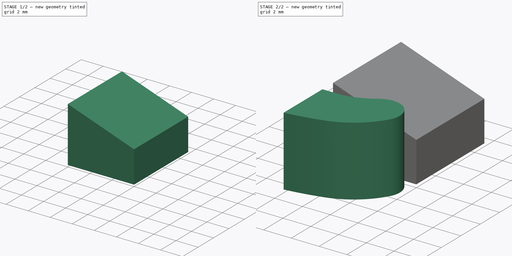
[diagram: build sequence overview — one tinted view per stage of 2, left to right]
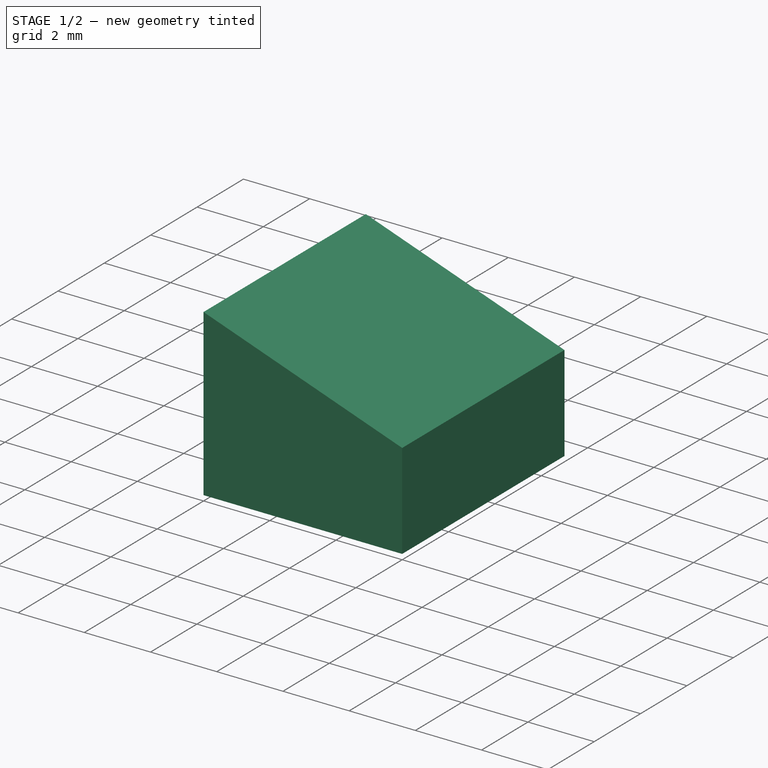
[diagram: stage 1 of 2 — iso view after this stage's code; geometry added in this stage tinted green]
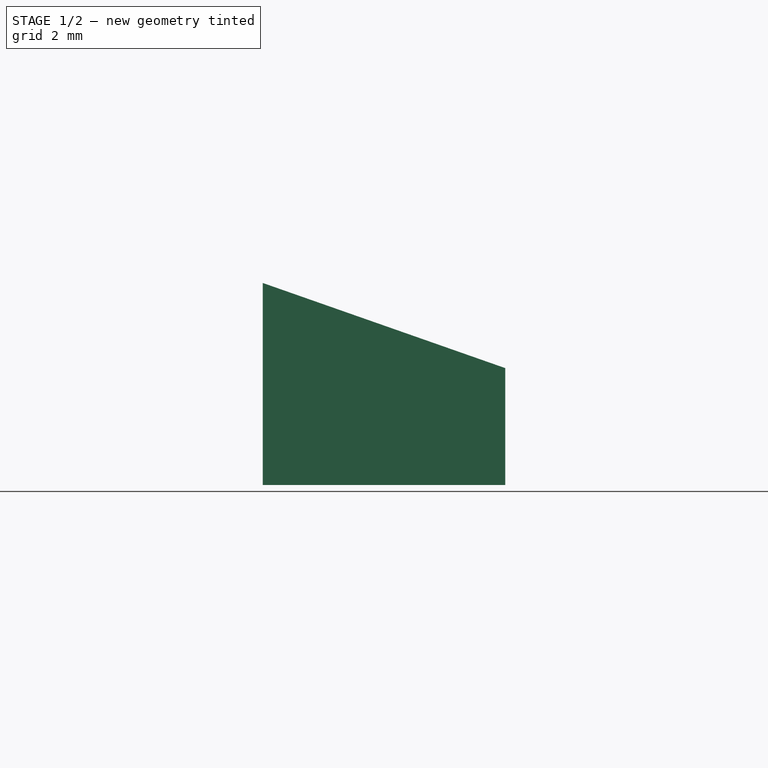
[diagram: stage 1 of 2 — front view after this stage's code; geometry added in this stage tinted green]
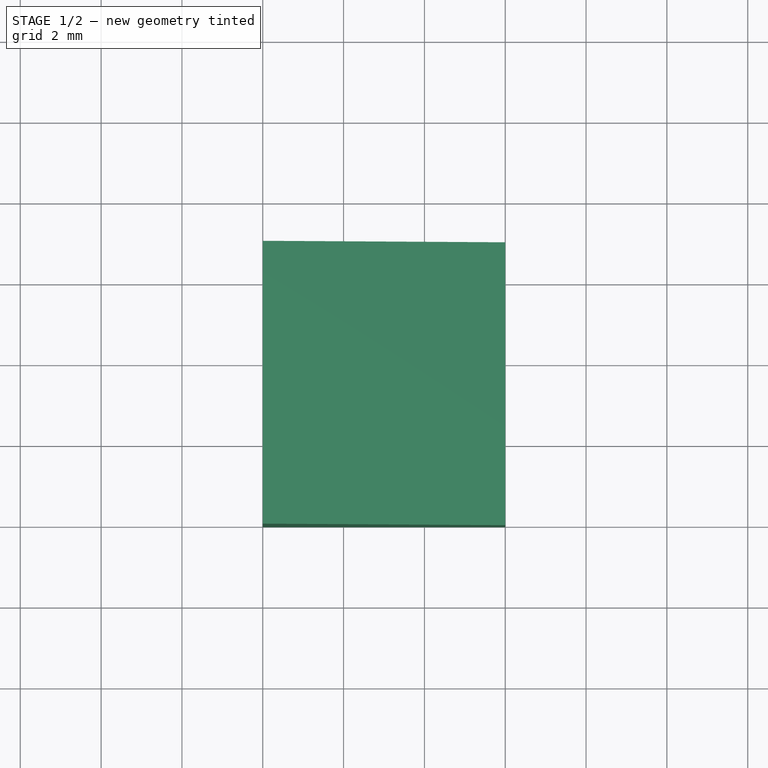
[diagram: stage 1 of 2 — top view after this stage's code; geometry added in this stage tinted green]
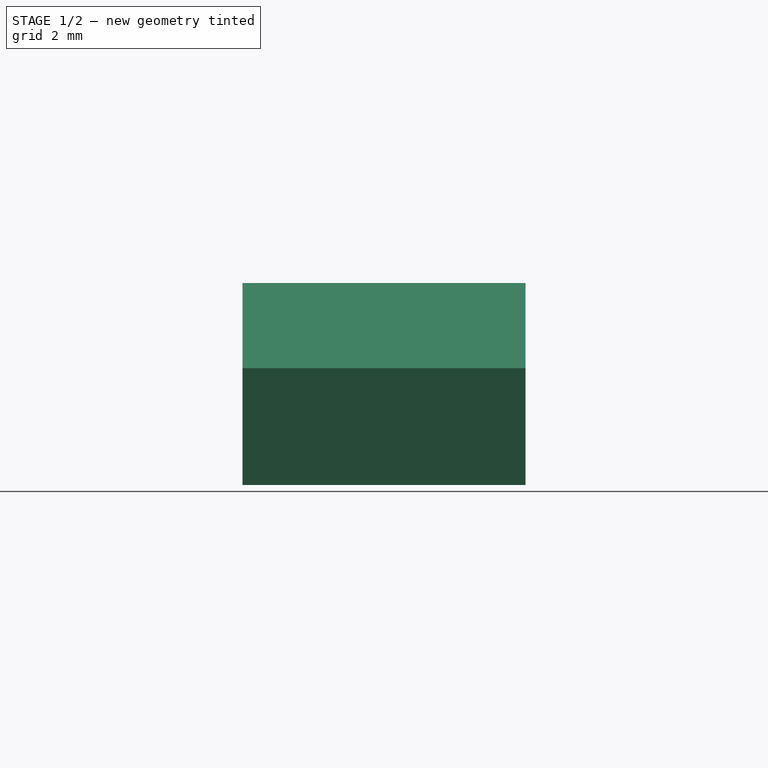
[diagram: stage 1 of 2 — right view after this stage's code; geometry added in this stage tinted green]
FCSTD DOCUMENT  (FreeCAD 0.15R4671 (Git))
Label: Lug2
License: All rights reserved
LicenseURL: http://en.wikipedia.org/wiki/All_rights_reserved
objects: Sketcher::SketchObject×2, Part::Extrusion×2, Part::Common×2
note: 6 computed .brp shape members not serialized (recipe doc carries the construction recipe); baked Part::Feature solids carry a one-line shape summary decoded from their .brp

FEATURE [Sketcher::SketchObject] Sketch001
  Placement = pos=(0,0,0) rot=(1,0,0;1.5708rad)
  sketch-geometry (4):
    g0: LineSegment StartX=0 StartY=5 StartZ=0 EndX=6 EndY=2.89346 EndZ=0
    g1: LineSegment StartX=6 StartY=0 StartZ=0 EndX=0 EndY=0 EndZ=0
    g2: LineSegment StartX=0 StartY=0 StartZ=0 EndX=0 EndY=5 EndZ=0
    g3: LineSegment StartX=6 StartY=2.89346 StartZ=0 EndX=6 EndY=0 EndZ=0
  constraints (11):
    c: PointOnObject(g0,g-2)
    c: Coincident(g1,g-1)
    c: Horizontal(g1)
    c: Coincident(g1,g2)
    c: Coincident(g2,g0)
    c: DistanceX(g0,g0) = -6
    c: DistanceY(g-1,g0) = 5
    c: Coincident(g3,g0)
    c: Vertical(g3)
    c: Coincident(g1,g3)
    c: DistanceY(g0,g1) = -2.89346
FEATURE [Part::Extrusion] Extrude001  label="cut"
  Base = -> Sketch001
  Dir = (0,7,0)
  Solid = true
FEATURE [Part::Common] Common001
  Base = -> Extrude
  Tool = -> Extrude001
FEATURE [Part::Common] Common
  Base = -> Extrude
  Tool = -> Extrude001
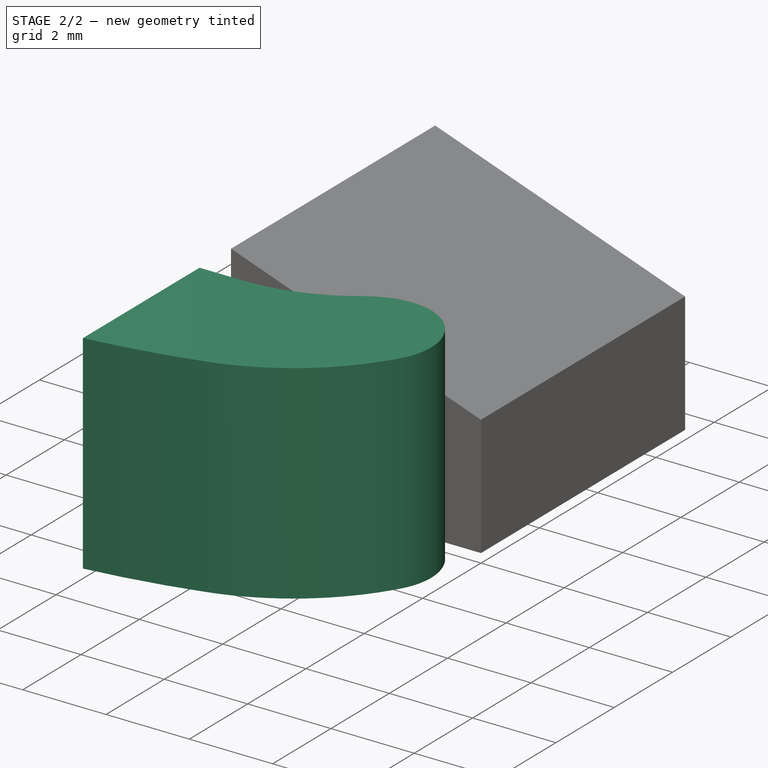
[diagram: stage 2 of 2 — iso view after this stage's code; geometry added in this stage tinted green]
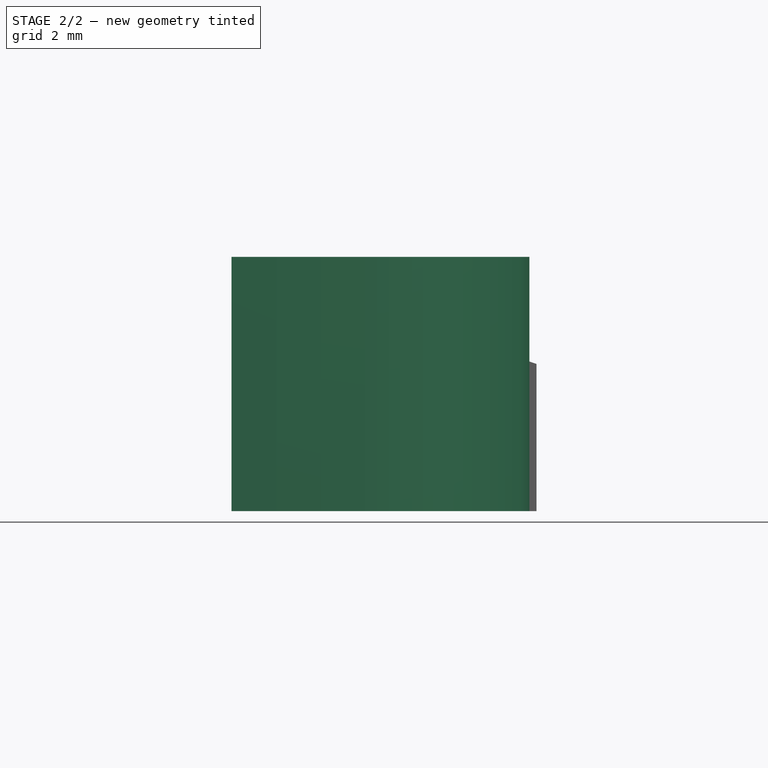
[diagram: stage 2 of 2 — front view after this stage's code; geometry added in this stage tinted green]
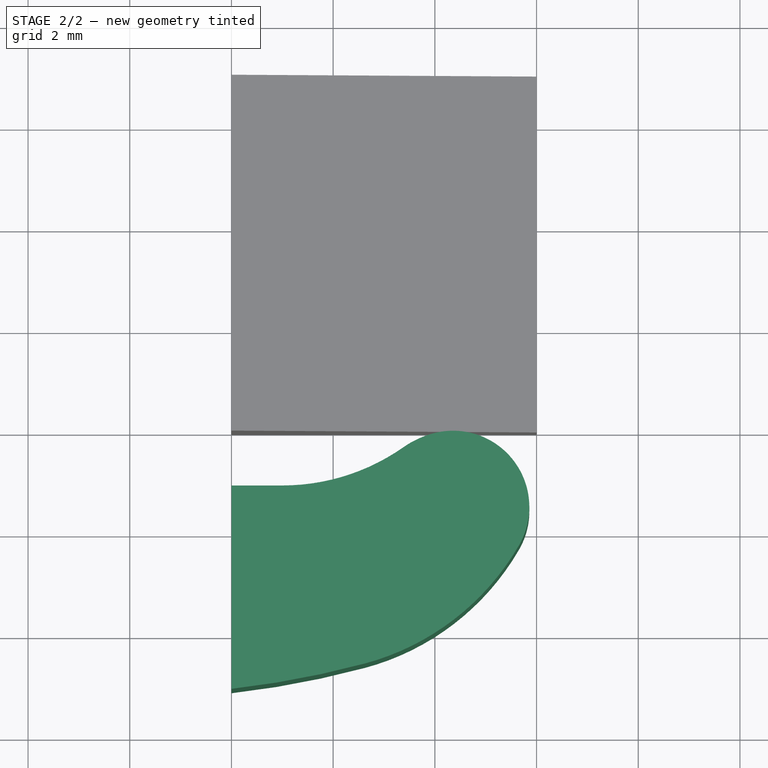
[diagram: stage 2 of 2 — top view after this stage's code; geometry added in this stage tinted green]
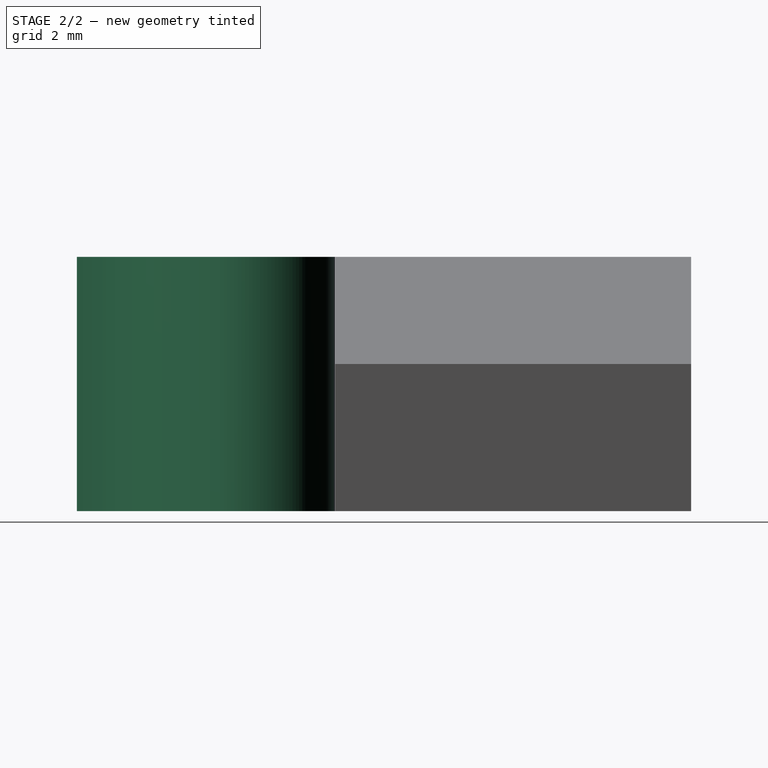
[diagram: stage 2 of 2 — right view after this stage's code; geometry added in this stage tinted green]
FEATURE [Sketcher::SketchObject] Sketch
  Placement = pos=(0,0,0) rot=(1,0,0;3.14159rad)
  sketch-geometry (7):
    g0: ArcOfCircle CenterX=-2.03766 CenterY=-12.8051 CenterZ=0 NormalX=0 NormalY=0 NormalZ=1 Radius=18 StartAngle=1.309 EndAngle=1.45735
    g1: ArcOfCircle CenterX=1.32699 CenterY=-0.248111 CenterZ=0 NormalX=0 NormalY=0 NormalZ=1 Radius=5 StartAngle=0.523599 EndAngle=1.309
    g2: ArcOfCircle CenterX=4.35808 CenterY=1.50189 CenterZ=0 NormalX=0 NormalY=0 NormalZ=1 Radius=1.5 StartAngle=4.45059 EndAngle=6.80678
    g3: ArcOfCircle CenterX=4.4586 CenterY=1.87703 CenterZ=0 NormalX=0 NormalY=0 NormalZ=1 Radius=1.88837 StartAngle=4.10152 EndAngle=4.45059
    g4: LineSegment StartX=1 StartY=1.07915 StartZ=0 EndX=9e-12 EndY=1.07915 EndZ=0
    g5: LineSegment StartX=9e-12 StartY=5.07915 StartZ=0 EndX=9e-12 EndY=1.07915 EndZ=0
    g6: ArcOfCircle CenterX=1 CenterY=-3.06236 CenterZ=0 NormalX=0 NormalY=0 NormalZ=1 Radius=4.14151 StartAngle=0.959931 EndAngle=1.5708
  constraints (25):
    c: Coincident(g1,g0)
    c: Radius(g0) = 18
    c: Radius(g1) = 5
    c: Coincident(g2,g1)
    c: Radius(g2) = 1.5
    c: Horizontal(g4)
    c: Tangent(g2,g3) = -1.5708
    c: Coincident(g5,g0)
    c: Coincident(g5,g4)
    c: Vertical(g5)
    c: DistanceY(g0,g4) = -4
    c: Angle(g2) = 2.35619
    c: Angle(g3) = 0.349066
    c: Angle(g0) = 0.148353
    c: DistanceX(g4,g4) = 1
    c: Tangent(g0,g1)
    c: Tangent(g1,g2)
    c: Coincident(g6,g3)
    c: Coincident(g4,g6)
    c: Tangent(g3,g6)
    c: Tangent(g6,g4)
    c: Angle(g1) = 0.785398
    c: Angle(g6) = 0.610865
    c: DistanceX(g4) = 0
    c: DistanceY(g2) = 0.053
FEATURE [Part::Extrusion] Extrude  label="Lug"
  Base = -> Sketch
  Dir = (0,0,5)
  Solid = true
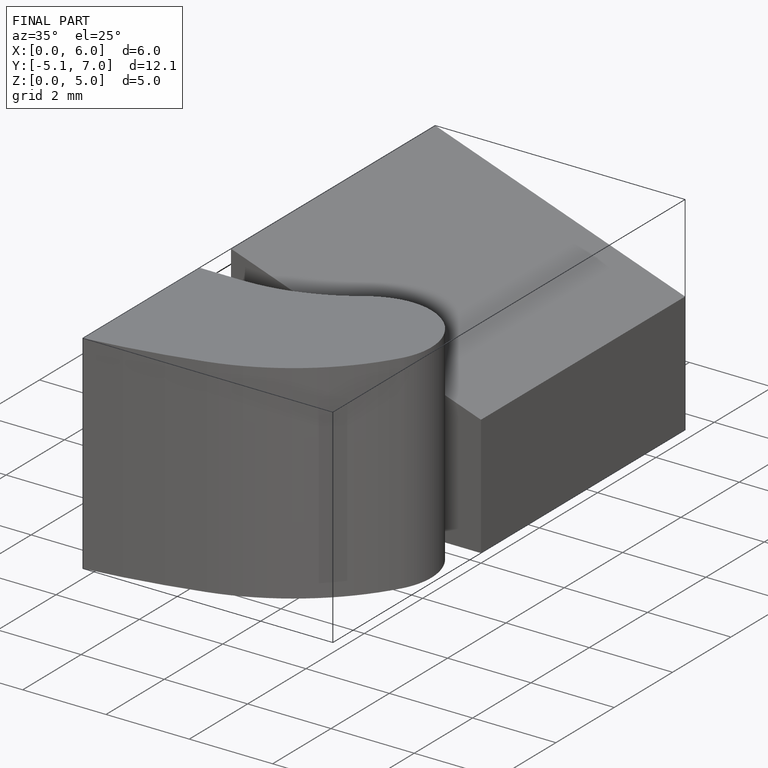
[diagram: finished part — iso view with bounding-box wireframe]
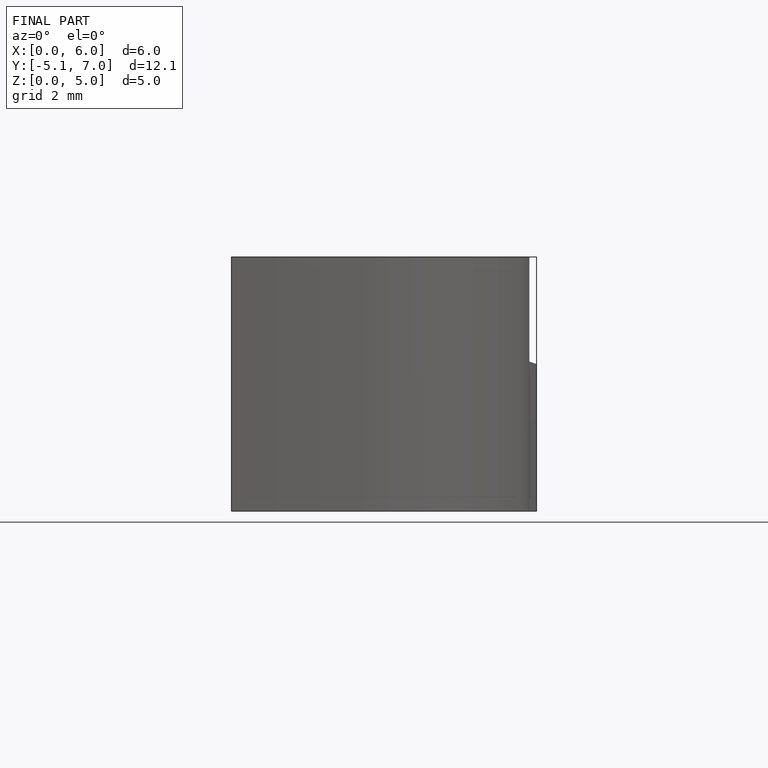
[diagram: finished part — front view with bounding-box wireframe]
